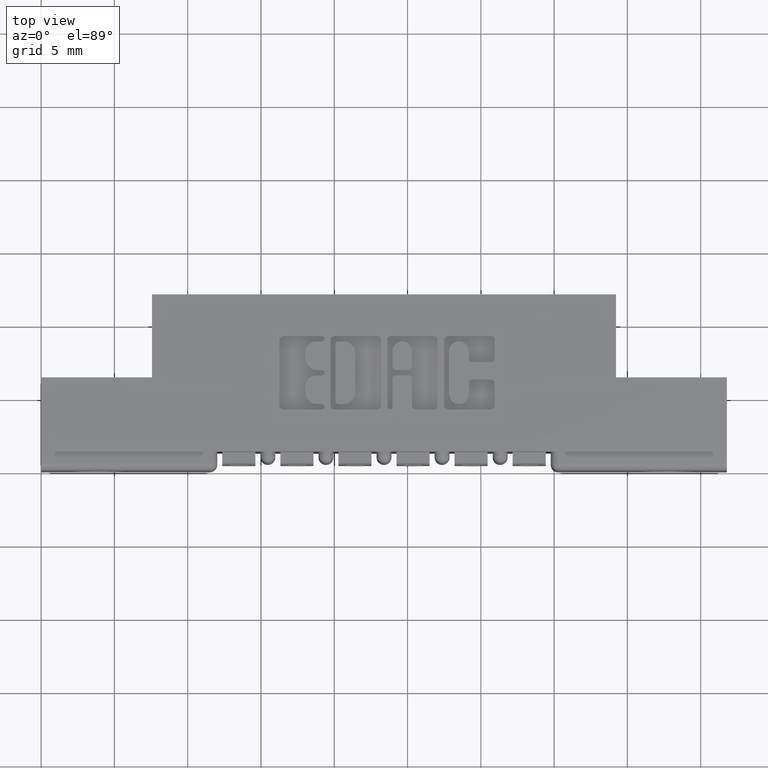
[diagram: clean part render]
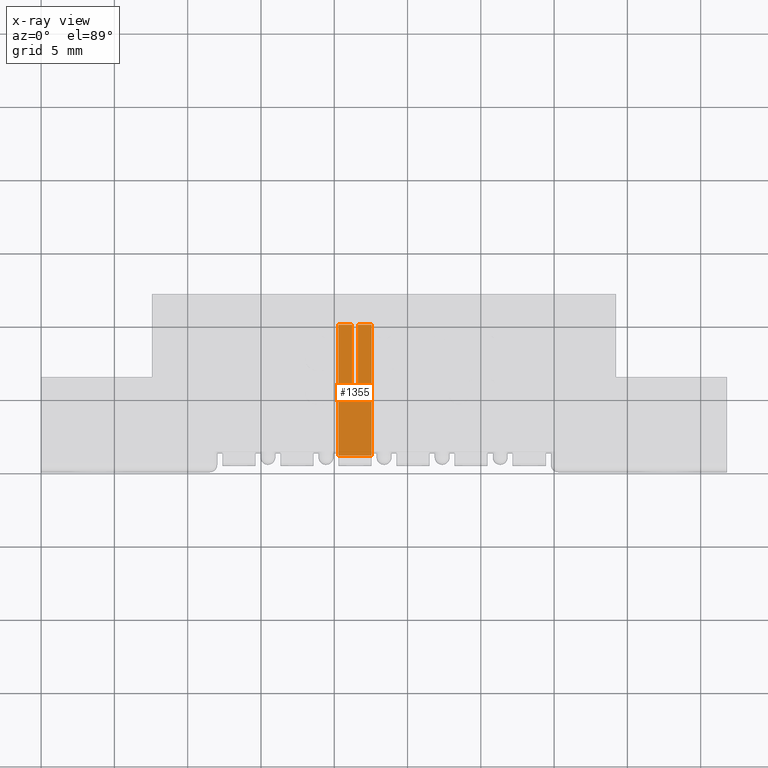
[diagram: x-ray — body ghosted, one internal face saturated and labeled with its STEP entity id]
A machine part, top view, then the same camera in x-ray: the body is ghosted and one INTERNAL B-rep face — a face not visible from any outside direction — is saturated and labeled: STEP entity #1355.
In plain terms, the highlighted planar face has unit normal (0, 0, -1).
Its self-contained STEP definition (entity closure, byte-faithful):
#132 = VECTOR ( 'NONE', #311, 39.37007874015748100 ) ;
#284 = CARTESIAN_POINT ( 'NONE',  ( 0.0000000000000000000, -0.07100000000001288600, -0.08900000000000006500 ) ) ;
#311 = DIRECTION ( 'NONE',  ( -2.405121282814697300E-013, 1.000000000000000000, 1.630345017883184300E-014 ) ) ;
#448 = EDGE_CURVE ( 'NONE', #5920, #9742, #5741, .T. ) ;
#569 = CARTESIAN_POINT ( 'NONE',  ( 0.0000000000000000000, 6.829619984160658200E-015, -0.08900000000000006500 ) ) ;
#622 = ORIENTED_EDGE ( 'NONE', *, *, #8294, .F. ) ;
#1052 = ORIENTED_EDGE ( 'NONE', *, *, #3092, .F. ) ;
#1216 = LINE ( 'NONE', #2444, #2535 ) ;
#1279 = LINE ( 'NONE', #2613, #8165 ) ;
#1355 = ADVANCED_FACE ( 'NONE', ( #4673 ), #8181, .T. ) ;
#1411 = DIRECTION ( 'NONE',  ( -2.405121282814697300E-013, 1.000000000000000000, 1.630345017883184300E-014 ) ) ;
#1712 = LINE ( 'NONE', #10728, #8592 ) ;
#2103 = VERTEX_POINT ( 'NONE', #4309 ) ;
#2444 = CARTESIAN_POINT ( 'NONE',  ( -1.058591097544902000E-014, 0.2797499999999172300, -0.08900000000000006500 ) ) ;
#2481 = ORIENTED_EDGE ( 'NONE', *, *, #448, .F. ) ;
#2535 = VECTOR ( 'NONE', #8422, 39.37007874015748100 ) ;
#2613 = CARTESIAN_POINT ( 'NONE',  ( 0.0000000000000000000, 0.0000000000000000000, 0.0000000000000000000 ) ) ;
#2620 = CARTESIAN_POINT ( 'NONE',  ( -1.058591097544902000E-014, 0.2797499999999090200, 0.0000000000000000000 ) ) ;
#2638 = ORIENTED_EDGE ( 'NONE', *, *, #7262, .T. ) ;
#2802 = CARTESIAN_POINT ( 'NONE',  ( -1.051761477560741300E-014, 0.2797499999999090200, -0.03650000000000055300 ) ) ;
#2873 = CARTESIAN_POINT ( 'NONE',  ( -1.051761477560741300E-014, 0.2797499999999128500, -0.05250000000000060200 ) ) ;
#3058 = CARTESIAN_POINT ( 'NONE',  ( 6.829619984160658000E-017, 0.1050000000000024100, -0.05250000000000060200 ) ) ;
#3092 = EDGE_CURVE ( 'NONE', #9742, #5957, #9134, .T. ) ;
#3541 = DIRECTION ( 'NONE',  ( 2.407633052674174400E-013, -1.000000000000000000, -1.630345017883188100E-014 ) ) ;
#3992 = VECTOR ( 'NONE', #4571, 39.37007874015748100 ) ;
#4025 = AXIS2_PLACEMENT_3D ( 'NONE', #569, #5637, #7371 ) ;
#4027 = CARTESIAN_POINT ( 'NONE',  ( 0.0000000000000000000, -0.07100000000001920100, 0.0000000000000000000 ) ) ;
#4050 = VERTEX_POINT ( 'NONE', #2620 ) ;
#4086 = DIRECTION ( 'NONE',  ( -1.408041765847827400E-013, 1.630345017883186800E-014, 1.000000000000000000 ) ) ;
#4160 = LINE ( 'NONE', #3058, #8375 ) ;
#4309 = CARTESIAN_POINT ( 'NONE',  ( -1.058591097544902000E-014, 0.2797499999999172300, -0.08900000000000006500 ) ) ;
#4571 = DIRECTION ( 'NONE',  ( -1.408041765847827400E-013, 1.630345017883186800E-014, 1.000000000000000000 ) ) ;
#4673 = FACE_OUTER_BOUND ( 'NONE', #9153, .T. ) ;
#4723 = EDGE_CURVE ( 'NONE', #4050, #8979, #1279, .T. ) ;
#5592 = ORIENTED_EDGE ( 'NONE', *, *, #10370, .T. ) ;
#5637 = DIRECTION ( 'NONE',  ( -1.000000000000000000, 2.406408405874981400E-013, -1.408041765847866500E-013 ) ) ;
#5741 = LINE ( 'NONE', #6771, #9966 ) ;
#5920 = VERTEX_POINT ( 'NONE', #7735 ) ;
#5957 = VERTEX_POINT ( 'NONE', #2802 ) ;
#6131 = CARTESIAN_POINT ( 'NONE',  ( 6.829619984160658000E-017, 0.1050000000000024100, -0.03650000000000055300 ) ) ;
#6203 = EDGE_CURVE ( 'NONE', #5920, #10632, #4160, .T. ) ;
#6231 = CARTESIAN_POINT ( 'NONE',  ( 6.829619984160658000E-017, 0.1050000000000024100, -0.03650000000000055300 ) ) ;
#6239 = ORIENTED_EDGE ( 'NONE', *, *, #6203, .T. ) ;
#6452 = VECTOR ( 'NONE', #3541, 39.37007874015748100 ) ;
#6771 = CARTESIAN_POINT ( 'NONE',  ( 6.829619984160658000E-017, 0.1050000000000024100, -0.03650000000000055300 ) ) ;
#6902 = DIRECTION ( 'NONE',  ( 2.406408405875026800E-013, -1.000000000000000000, -1.630345017883185900E-014 ) ) ;
#7009 = CARTESIAN_POINT ( 'NONE',  ( 0.0000000000000000000, 6.829619984160658200E-015, -0.08900000000000006500 ) ) ;
#7048 = LINE ( 'NONE', #10674, #3992 ) ;
#7262 = EDGE_CURVE ( 'NONE', #8020, #8979, #7048, .T. ) ;
#7371 = DIRECTION ( 'NONE',  ( -1.408041765847827400E-013, 1.630345017883186800E-014, 1.000000000000000000 ) ) ;
#7735 = CARTESIAN_POINT ( 'NONE',  ( 6.829619984160658000E-017, 0.1050000000000024100, -0.05250000000000060200 ) ) ;
#8020 = VERTEX_POINT ( 'NONE', #284 ) ;
#8165 = VECTOR ( 'NONE', #6902, 39.37007874015748100 ) ;
#8181 = PLANE ( 'NONE',  #4025 ) ;
#8294 = EDGE_CURVE ( 'NONE', #2103, #10632, #1216, .T. ) ;
#8375 = VECTOR ( 'NONE', #1411, 39.37007874015748100 ) ;
#8422 = DIRECTION ( 'NONE',  ( -1.408041765847827400E-013, 1.630345017883186800E-014, 1.000000000000000000 ) ) ;
#8592 = VECTOR ( 'NONE', #4086, 39.37007874015748100 ) ;
#8704 = LINE ( 'NONE', #7009, #6452 ) ;
#8979 = VERTEX_POINT ( 'NONE', #4027 ) ;
#9134 = LINE ( 'NONE', #6231, #132 ) ;
#9153 = EDGE_LOOP ( 'NONE', ( #5592, #2638, #9414, #9573, #1052, #2481, #6239, #622 ) ) ;
#9295 = DIRECTION ( 'NONE',  ( -1.408041765847827400E-013, 1.630345017883186800E-014, 1.000000000000000000 ) ) ;
#9414 = ORIENTED_EDGE ( 'NONE', *, *, #4723, .F. ) ;
#9514 = EDGE_CURVE ( 'NONE', #5957, #4050, #1712, .T. ) ;
#9573 = ORIENTED_EDGE ( 'NONE', *, *, #9514, .F. ) ;
#9742 = VERTEX_POINT ( 'NONE', #6131 ) ;
#9966 = VECTOR ( 'NONE', #9295, 39.37007874015748100 ) ;
#10370 = EDGE_CURVE ( 'NONE', #2103, #8020, #8704, .T. ) ;
#10632 = VERTEX_POINT ( 'NONE', #2873 ) ;
#10674 = CARTESIAN_POINT ( 'NONE',  ( 0.0000000000000000000, -0.07100000000001288600, -0.08900000000000006500 ) ) ;
#10728 = CARTESIAN_POINT ( 'NONE',  ( -1.058591097544902000E-014, 0.2797499999999172300, -0.08900000000000006500 ) ) ;